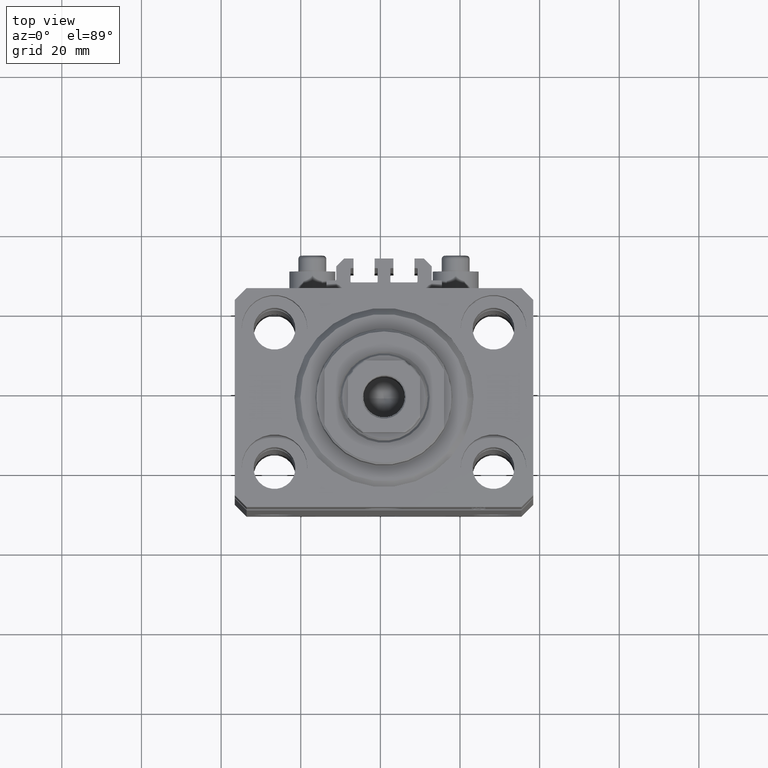
[diagram: clean part render]
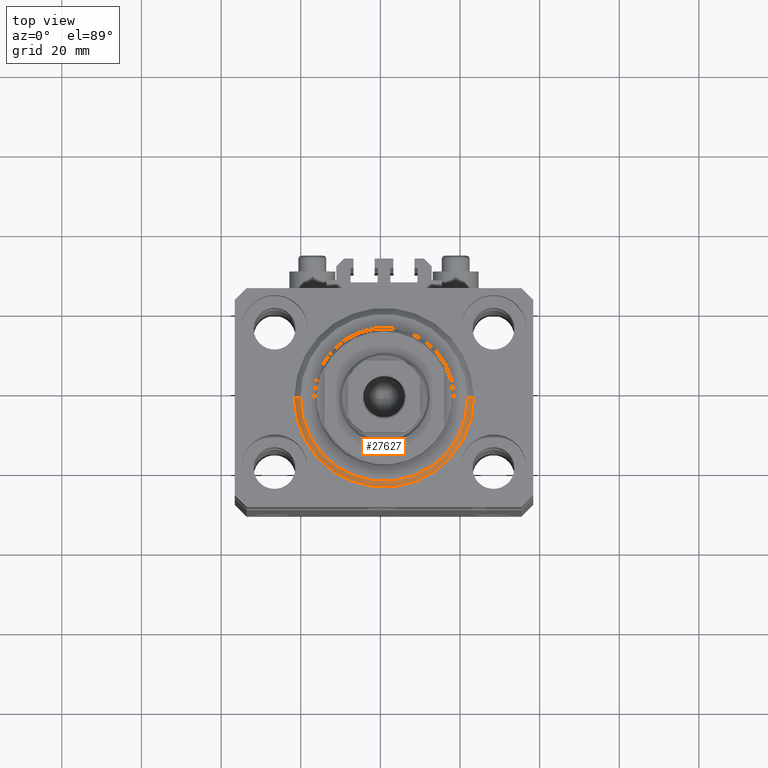
[diagram: same view with one face highlighted and labeled with its STEP entity id]
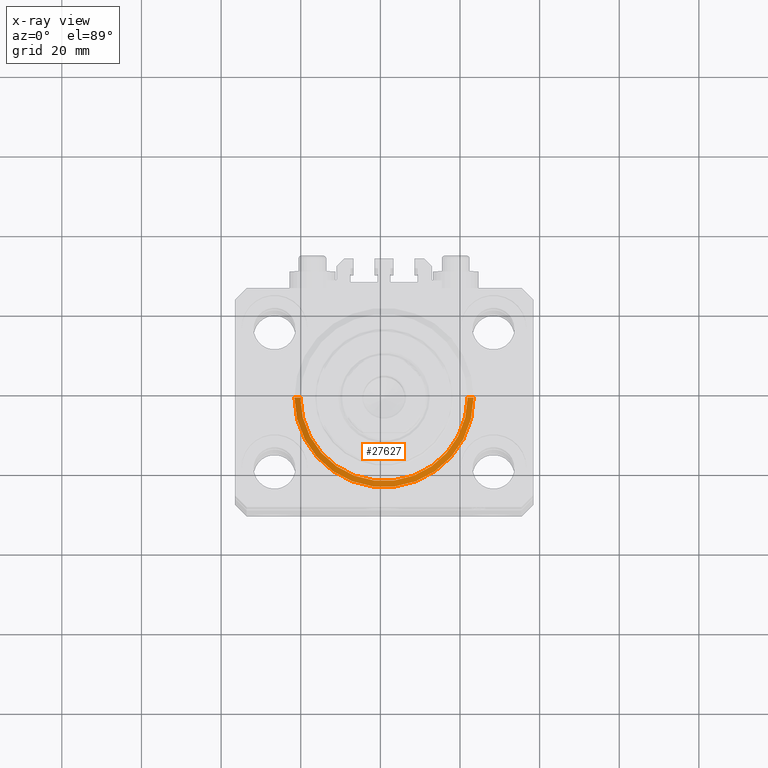
[diagram: x-ray of the same camera — body ghosted, the highlighted face saturated]
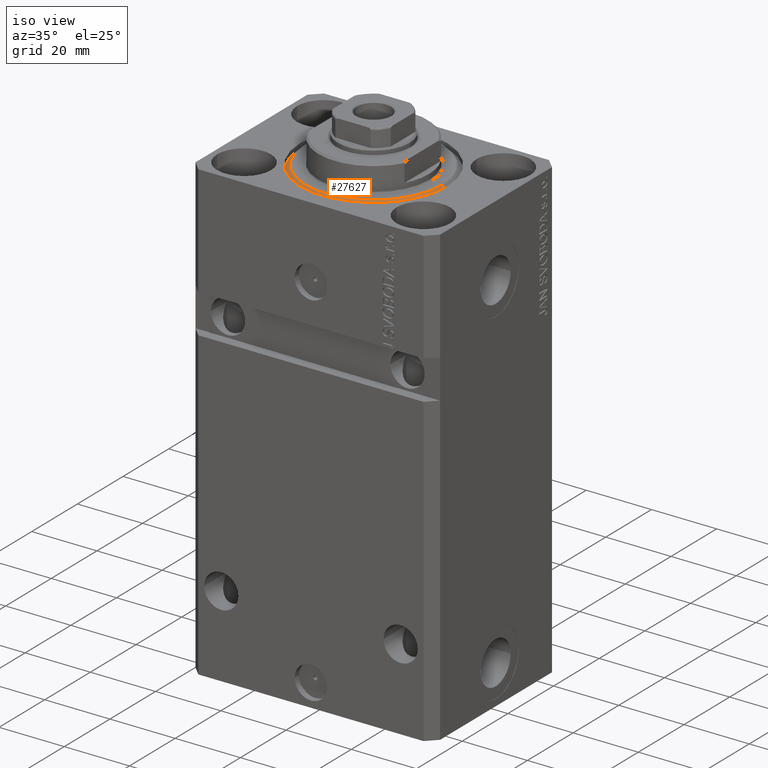
[diagram: same view with one face highlighted and labeled with its STEP entity id]
A machine part, top view. The second image highlights one B-rep face of the part: STEP entity #27627.
The next image is the same camera in x-ray: the body ghosted, the highlighted face saturated — about 0% of this face is hidden behind the body in this view.
A second angle (iso view) of the same face is appended — the face is thin or edge-on in the first view.
In plain terms, the highlighted conical surface has half-angle 45 deg.
Its self-contained STEP definition (entity closure, byte-faithful):
#2698 = DIRECTION ( 'NONE',  ( 1.000000000000000000, 0.000000000000000000, 0.000000000000000000 ) ) ;
#3670 = DIRECTION ( 'NONE',  ( 1.000000000000000000, 0.000000000000000000, 0.000000000000000000 ) ) ;
#4465 = DIRECTION ( 'NONE',  ( 0.7071067811865500152, 0.000000000000000000, 0.7071067811865451302 ) ) ;
#4495 = ORIENTED_EDGE ( 'NONE', *, *, #35766, .F. ) ;
#5488 = EDGE_CURVE ( 'NONE', #10270, #6780, #46045, .T. ) ;
#5965 = AXIS2_PLACEMENT_3D ( 'NONE', #26444, #22084, #3670 ) ;
#6780 = VERTEX_POINT ( 'NONE', #16191 ) ;
#7524 = CARTESIAN_POINT ( 'NONE',  ( 0.000000000000000000, 0.000000000000000000, 1.500000000000001332 ) ) ;
#8682 = ORIENTED_EDGE ( 'NONE', *, *, #5488, .F. ) ;
#10270 = VERTEX_POINT ( 'NONE', #18506 ) ;
#10443 = AXIS2_PLACEMENT_3D ( 'NONE', #7524, #22309, #2698 ) ;
#11961 = CARTESIAN_POINT ( 'NONE',  ( 22.50000000000000355, 0.000000000000000000, 1.500000000000001332 ) ) ;
#16130 = CARTESIAN_POINT ( 'NONE',  ( 0.000000000000000000, 0.000000000000000000, 1.500000000000001332 ) ) ;
#16191 = CARTESIAN_POINT ( 'NONE',  ( 22.50000000000000355, 2.755455298081545172E-15, 1.500000000000001332 ) ) ;
#16435 = VERTEX_POINT ( 'NONE', #21137 ) ;
#18506 = CARTESIAN_POINT ( 'NONE',  ( -22.50000000000000355, 0.000000000000000000, 1.500000000000001332 ) ) ;
#19746 = FACE_OUTER_BOUND ( 'NONE', #40689, .T. ) ;
#21137 = CARTESIAN_POINT ( 'NONE',  ( 20.99999999999998934, 0.000000000000000000, 0.000000000000000000 ) ) ;
#21144 = EDGE_CURVE ( 'NONE', #16435, #6780, #26028, .T. ) ;
#22084 = DIRECTION ( 'NONE',  ( -0.000000000000000000, -0.000000000000000000, -1.000000000000000000 ) ) ;
#22309 = DIRECTION ( 'NONE',  ( -0.000000000000000000, -0.000000000000000000, 1.000000000000000000 ) ) ;
#25589 = VECTOR ( 'NONE', #26818, 1000.000000000000114 ) ;
#26028 = LINE ( 'NONE', #11961, #38470 ) ;
#26444 = CARTESIAN_POINT ( 'NONE',  ( 0.000000000000000000, 0.000000000000000000, 0.000000000000000000 ) ) ;
#26818 = DIRECTION ( 'NONE',  ( -0.7071067811865500152, 8.659560562354963673E-17, 0.7071067811865451302 ) ) ;
#27627 = ADVANCED_FACE ( 'NONE', ( #19746 ), #29390, .T. ) ;
#29390 = CONICAL_SURFACE ( 'NONE', #45662, 22.50000000000000355, 0.7853981633974517207 ) ;
#30675 = LINE ( 'NONE', #42545, #25589 ) ;
#30886 = DIRECTION ( 'NONE',  ( -0.000000000000000000, -0.000000000000000000, 1.000000000000000000 ) ) ;
#33395 = EDGE_CURVE ( 'NONE', #37516, #10270, #30675, .T. ) ;
#35766 = EDGE_CURVE ( 'NONE', #16435, #37516, #43082, .T. ) ;
#37516 = VERTEX_POINT ( 'NONE', #46641 ) ;
#38470 = VECTOR ( 'NONE', #4465, 1000.000000000000114 ) ;
#40689 = EDGE_LOOP ( 'NONE', ( #40898, #4495, #43741, #8682 ) ) ;
#40898 = ORIENTED_EDGE ( 'NONE', *, *, #33395, .F. ) ;
#42545 = CARTESIAN_POINT ( 'NONE',  ( -22.50000000000000355, 2.755455298081545172E-15, 1.500000000000001332 ) ) ;
#43082 = CIRCLE ( 'NONE', #5965, 20.99999999999998934 ) ;
#43741 = ORIENTED_EDGE ( 'NONE', *, *, #21144, .T. ) ;
#45662 = AXIS2_PLACEMENT_3D ( 'NONE', #16130, #30886, #45677 ) ;
#45677 = DIRECTION ( 'NONE',  ( 1.000000000000000000, 0.000000000000000000, 0.000000000000000000 ) ) ;
#46045 = CIRCLE ( 'NONE', #10443, 22.50000000000000355 ) ;
#46641 = CARTESIAN_POINT ( 'NONE',  ( -20.99999999999998934, 2.663606788145492628E-15, 0.000000000000000000 ) ) ;